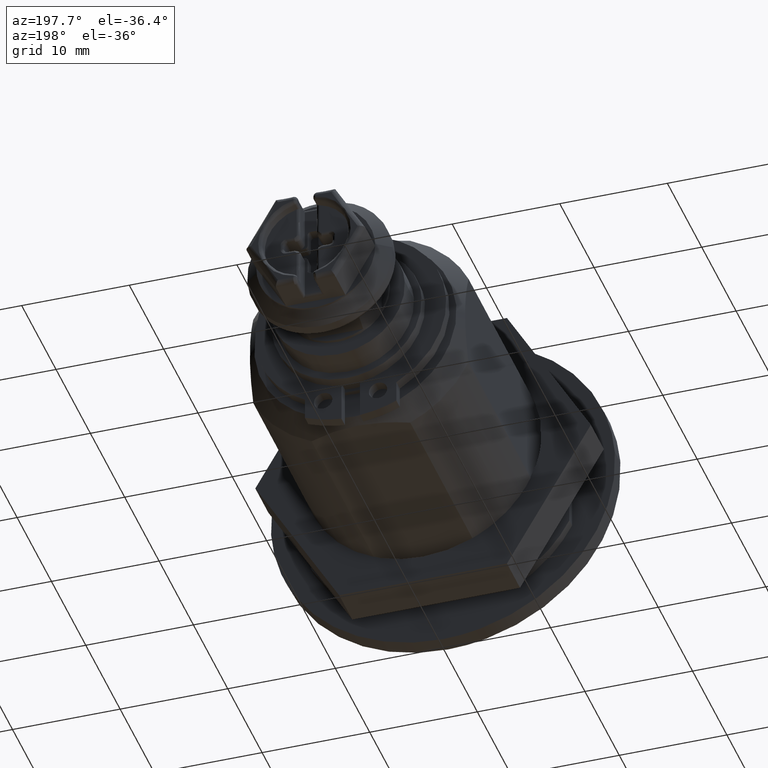
[diagram: clean part render]
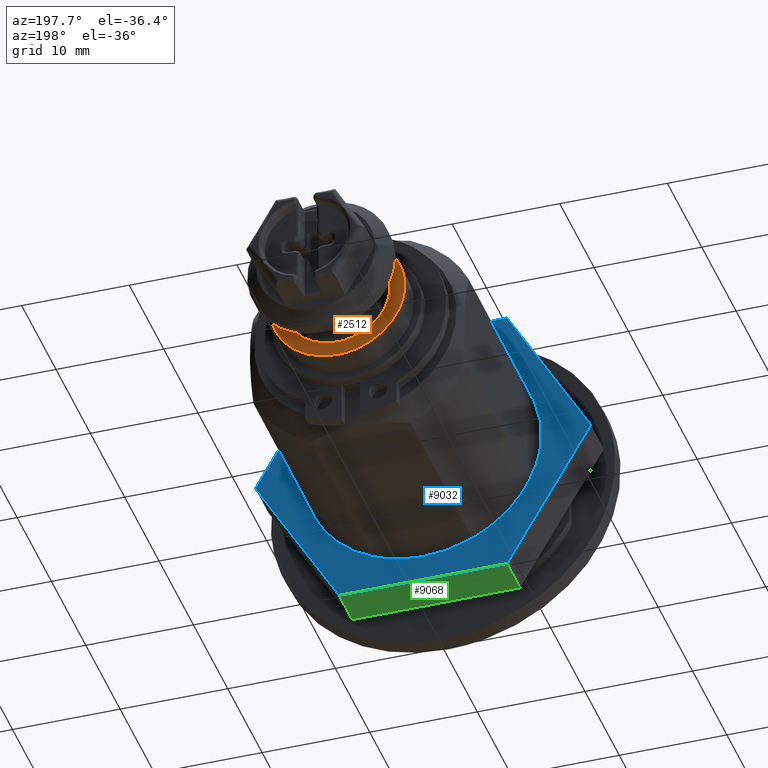
[diagram: same view with three faces highlighted in distinct colors, each labeled with its STEP entity id]
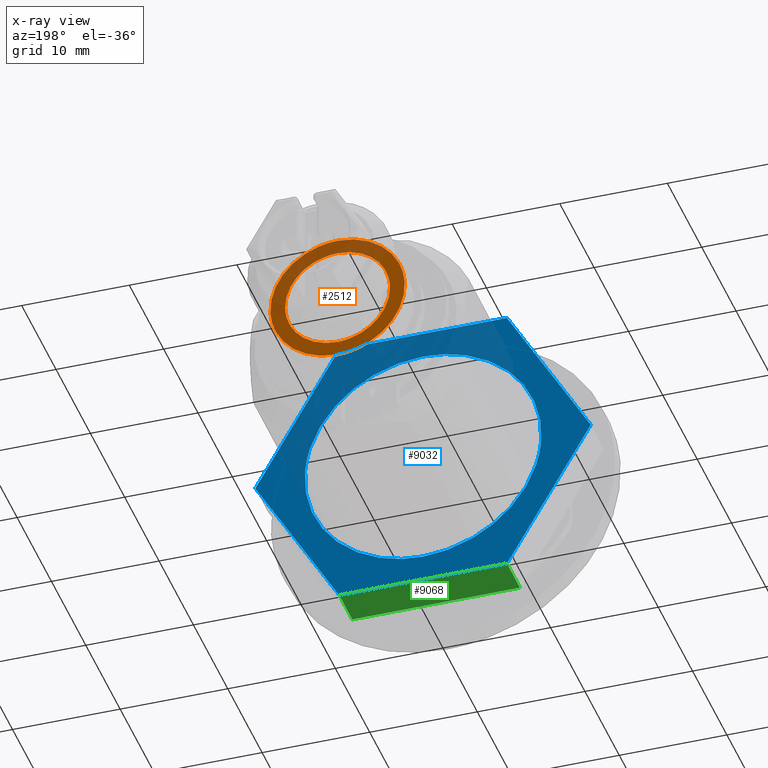
[diagram: x-ray of the same camera — body ghosted, the three highlighted faces saturated]
A machine part, auxiliary view with three faces highlighted in distinct colors.
The next image is the same camera in x-ray (body ghosted, the three faces saturated) — at least one of them is partly hidden behind the body in this view.
Their STEP definitions:

[orange] entity #2512 — the highlighted face is a freeform B-spline surface patch.
#2332=CARTESIAN_POINT('',(-6.238342513374422,30.699999999999999,0.381553373544685));
#2333=VERTEX_POINT('',#2332);
#2339=CARTESIAN_POINT('',(1.879771E-015,30.699999999999999,-6.250000000000000));
#2340=VERTEX_POINT('',#2339);
#2341=CARTESIAN_POINT('',(-6.238342513374422,30.699999999999999,0.381553373544685));
#2342=CARTESIAN_POINT('',(-6.250000022905648,30.700000000000003,0.190954772032410));
#2343=CARTESIAN_POINT('',(-6.250000022550630,30.699999999999999,1.379256E-009));
#2344=CARTESIAN_POINT('',(-6.250000010930822,30.700000000000003,-6.249999999331443));
#2345=CARTESIAN_POINT('',(1.879771E-015,30.699999999999999,-6.250000000000000));
#2353=(BOUNDED_CURVE()B_SPLINE_CURVE(2,(#2341,#2342,#2343,#2344,#2345),.UNSPECIFIED.,.F.,.U.)B_SPLINE_CURVE_WITH_KNOTS((3,2,3),(0.239332962241127,0.250000000000000,0.500000000000000),.UNSPECIFIED.)CURVE()GEOMETRIC_REPRESENTATION_ITEM()RATIONAL_B_SPLINE_CURVE((0.976072041671398,0.987502787902396,1.0,0.707106781186547,1.0))REPRESENTATION_ITEM(''));
#2354=EDGE_CURVE('',#2333,#2340,#2353,.T.);
#2356=CARTESIAN_POINT('',(6.238342513374425,30.699999999999999,-0.381553373544685));
#2357=VERTEX_POINT('',#2356);
#2358=CARTESIAN_POINT('',(1.879771E-015,30.699999999999999,-6.250000000000000));
#2359=CARTESIAN_POINT('',(5.879412929751665,30.699999999999999,-6.250000000710696));
#2360=CARTESIAN_POINT('',(6.238342513374425,30.699999999999999,-0.381553373544685));
#2368=(BOUNDED_CURVE()B_SPLINE_CURVE(2,(#2358,#2359,#2360),.UNSPECIFIED.,.F.,.U.)B_SPLINE_CURVE_WITH_KNOTS((3,3),(0.500000000000000,0.739332962241127),.UNSPECIFIED.)CURVE()GEOMETRIC_REPRESENTATION_ITEM()RATIONAL_B_SPLINE_CURVE((1.0,0.719603993284152,0.976072041671398))REPRESENTATION_ITEM(''));
#2369=EDGE_CURVE('',#2340,#2357,#2368,.T.);
#2401=CARTESIAN_POINT('',(1.879771E-015,30.699999999999999,6.250000000000000));
#2402=VERTEX_POINT('',#2401);
#2403=CARTESIAN_POINT('',(6.238342513374425,30.699999999999999,-0.381553373544685));
#2404=CARTESIAN_POINT('',(6.250000022905651,30.700000000000003,-0.190954772032410));
#2405=CARTESIAN_POINT('',(6.250000022550633,30.699999999999999,-1.379256E-009));
#2406=CARTESIAN_POINT('',(6.250000010930825,30.700000000000003,6.249999999331443));
#2407=CARTESIAN_POINT('',(1.879771E-015,30.699999999999999,6.250000000000000));
#2415=(BOUNDED_CURVE()B_SPLINE_CURVE(2,(#2403,#2404,#2405,#2406,#2407),.UNSPECIFIED.,.F.,.U.)B_SPLINE_CURVE_WITH_KNOTS((3,2,3),(0.739332962241127,0.750000000000000,1.0),.UNSPECIFIED.)CURVE()GEOMETRIC_REPRESENTATION_ITEM()RATIONAL_B_SPLINE_CURVE((0.976072041671398,0.987502787902396,1.0,0.707106781186547,1.0))REPRESENTATION_ITEM(''));
#2416=EDGE_CURVE('',#2357,#2402,#2415,.T.);
#2418=CARTESIAN_POINT('',(1.879771E-015,30.699999999999999,6.250000000000000));
#2419=CARTESIAN_POINT('',(-5.879412929751661,30.699999999999999,6.250000000710696));
#2420=CARTESIAN_POINT('',(-6.238342513374422,30.699999999999999,0.381553373544685));
#2428=(BOUNDED_CURVE()B_SPLINE_CURVE(2,(#2418,#2419,#2420),.UNSPECIFIED.,.F.,.U.)B_SPLINE_CURVE_WITH_KNOTS((3,3),(0.0,0.239332962241127),.UNSPECIFIED.)CURVE()GEOMETRIC_REPRESENTATION_ITEM()RATIONAL_B_SPLINE_CURVE((1.0,0.719603993284152,0.976072041671398))REPRESENTATION_ITEM(''));
#2429=EDGE_CURVE('',#2402,#2333,#2428,.T.);
#2435=CARTESIAN_POINT('',(6.874221170682428,30.699999999999999,-6.874374975772575));
#2436=CARTESIAN_POINT('',(6.874221170682428,30.699999999999999,6.874375311048702));
#2437=CARTESIAN_POINT('',(-6.874220947165007,30.699999999999999,-6.874374975772575));
#2438=CARTESIAN_POINT('',(-6.874220947165007,30.699999999999999,6.874375311048702));
#2439=B_SPLINE_SURFACE_WITH_KNOTS('',1,1,((#2435,#2437),(#2436,#2438)),.UNSPECIFIED.,.F.,.F.,.U.,(2,2),(2,2),(0.0,13.748750286821281),(0.0,13.748442117847439),.UNSPECIFIED.);
#2440=ORIENTED_EDGE('',*,*,#2416,.F.);
#2441=ORIENTED_EDGE('',*,*,#2369,.F.);
#2442=ORIENTED_EDGE('',*,*,#2354,.F.);
#2443=ORIENTED_EDGE('',*,*,#2429,.F.);
#2444=EDGE_LOOP('',(#2440,#2441,#2442,#2443));
#2445=FACE_OUTER_BOUND('',#2444,.T.);
#2446=CARTESIAN_POINT('',(1.879771E-015,30.699999999999999,-4.873461090027790));
#2447=VERTEX_POINT('',#2446);
#2448=CARTESIAN_POINT('',(4.873276285907901,30.699999999999999,-0.042519608505355));
#2449=VERTEX_POINT('',#2448);
#2450=CARTESIAN_POINT('',(1.879771E-015,30.699999999999999,-4.873461090027790));
#2451=CARTESIAN_POINT('',(4.831125708236149,30.699999999999999,-4.873461093017459));
#2452=CARTESIAN_POINT('',(4.873276285907901,30.700000000000003,-0.042519608505355));
#2460=(BOUNDED_CURVE()B_SPLINE_CURVE(2,(#2450,#2451,#2452),.UNSPECIFIED.,.F.,.U.)B_SPLINE_CURVE_WITH_KNOTS((3,3),(0.500000000000000,0.748460424774428),.UNSPECIFIED.)CURVE()GEOMETRIC_REPRESENTATION_ITEM()RATIONAL_B_SPLINE_CURVE((1.0,0.708910505760241,0.996414766609952))REPRESENTATION_ITEM(''));
#2461=EDGE_CURVE('',#2447,#2449,#2460,.T.);
#2462=ORIENTED_EDGE('',*,*,#2461,.T.);
#2463=CARTESIAN_POINT('',(1.879771E-015,30.699999999999999,4.873461090027790));
#2464=VERTEX_POINT('',#2463);
#2465=CARTESIAN_POINT('',(4.873276285907901,30.700000000000003,-0.042519608505355));
#2466=CARTESIAN_POINT('',(4.873461773852578,30.699999999999999,-0.021260211823126));
#2467=CARTESIAN_POINT('',(4.873461772357771,30.699999999999999,-5.953368E-009));
#2468=CARTESIAN_POINT('',(4.873461429704467,30.699999999999999,4.873461087064090));
#2469=CARTESIAN_POINT('',(1.879771E-015,30.699999999999999,4.873461090027790));
#2477=(BOUNDED_CURVE()B_SPLINE_CURVE(2,(#2465,#2466,#2467,#2468,#2469),.UNSPECIFIED.,.F.,.U.)B_SPLINE_CURVE_WITH_KNOTS((3,2,3),(0.748460424774428,0.750000000000000,1.0),.UNSPECIFIED.)CURVE()GEOMETRIC_REPRESENTATION_ITEM()RATIONAL_B_SPLINE_CURVE((0.996414766609952,0.998196275426307,1.0,0.707106781186548,1.0))REPRESENTATION_ITEM(''));
#2478=EDGE_CURVE('',#2449,#2464,#2477,.T.);
#2479=ORIENTED_EDGE('',*,*,#2478,.T.);
#2480=CARTESIAN_POINT('',(-4.873276285907897,30.699999999999999,0.042519608505356));
#2481=VERTEX_POINT('',#2480);
#2482=CARTESIAN_POINT('',(1.879771E-015,30.699999999999999,4.873461090027790));
#2483=CARTESIAN_POINT('',(-4.831125708236142,30.700000000000006,4.873461093017458));
#2484=CARTESIAN_POINT('',(-4.873276285907897,30.699999999999999,0.042519608505356));
#2492=(BOUNDED_CURVE()B_SPLINE_CURVE(2,(#2482,#2483,#2484),.UNSPECIFIED.,.F.,.U.)B_SPLINE_CURVE_WITH_KNOTS((3,3),(0.0,0.248460424774428),.UNSPECIFIED.)CURVE()GEOMETRIC_REPRESENTATION_ITEM()RATIONAL_B_SPLINE_CURVE((1.0,0.708910505760241,0.996414766609952))REPRESENTATION_ITEM(''));
#2493=EDGE_CURVE('',#2464,#2481,#2492,.T.);
#2494=ORIENTED_EDGE('',*,*,#2493,.T.);
#2495=CARTESIAN_POINT('',(-4.873276285907897,30.699999999999999,0.042519608505356));
#2496=CARTESIAN_POINT('',(-4.873461773852575,30.700000000000003,0.021260211823127));
#2497=CARTESIAN_POINT('',(-4.873461772357769,30.699999999999999,5.953368E-009));
#2498=CARTESIAN_POINT('',(-4.873461429704465,30.699999999999999,-4.873461087064090));
#2499=CARTESIAN_POINT('',(1.879771E-015,30.699999999999999,-4.873461090027790));
#2507=(BOUNDED_CURVE()B_SPLINE_CURVE(2,(#2495,#2496,#2497,#2498,#2499),.UNSPECIFIED.,.F.,.U.)B_SPLINE_CURVE_WITH_KNOTS((3,2,3),(0.248460424774428,0.250000000000000,0.500000000000000),.UNSPECIFIED.)CURVE()GEOMETRIC_REPRESENTATION_ITEM()RATIONAL_B_SPLINE_CURVE((0.996414766609952,0.998196275426306,1.0,0.707106781186548,1.0))REPRESENTATION_ITEM(''));
#2508=EDGE_CURVE('',#2481,#2447,#2507,.T.);
#2509=ORIENTED_EDGE('',*,*,#2508,.T.);
#2510=EDGE_LOOP('',(#2462,#2479,#2494,#2509));
#2511=FACE_BOUND('',#2510,.T.);
#2512=ADVANCED_FACE('',(#2445,#2511),#2439,.F.);

[blue] entity #9032 — the highlighted face is a freeform B-spline surface patch.
#8791=CARTESIAN_POINT('',(-10.966091461285419,5.800000000000001,-0.863040012178766));
#8792=VERTEX_POINT('',#8791);
#8798=CARTESIAN_POINT('',(3.551358E-016,5.800000000000000,10.999999999999970));
#8799=VERTEX_POINT('',#8798);
#8800=CARTESIAN_POINT('',(-10.966091461285428,5.800000000000003,-0.863040012178766));
#8801=CARTESIAN_POINT('',(-10.999999999995486,5.800000000000001,-0.432186133372559));
#8802=CARTESIAN_POINT('',(-10.999999999995580,5.800000000000001,3.191874E-013));
#8803=CARTESIAN_POINT('',(-10.999999999997875,5.800000000000002,11.000000000000139));
#8804=CARTESIAN_POINT('',(3.551358E-016,5.800000000000000,10.999999999999970));
#8812=(BOUNDED_CURVE()B_SPLINE_CURVE(2,(#8800,#8801,#8802,#8803,#8804),.UNSPECIFIED.,.F.,.U.)B_SPLINE_CURVE_WITH_KNOTS((3,2,3),(0.736331457593343,0.750000000000000,1.0),.UNSPECIFIED.)CURVE()GEOMETRIC_REPRESENTATION_ITEM()RATIONAL_B_SPLINE_CURVE((0.969723683736795,0.983986306472105,1.0,0.707106781186548,1.0))REPRESENTATION_ITEM(''));
#8813=EDGE_CURVE('',#8792,#8799,#8812,.T.);
#8815=CARTESIAN_POINT('',(10.966091461285419,5.799999999999999,0.863040012178706));
#8816=VERTEX_POINT('',#8815);
#8817=CARTESIAN_POINT('',(3.551358E-016,5.800000000000000,10.999999999999970));
#8818=CARTESIAN_POINT('',(10.168304747376913,5.800000000000000,10.999999999999790));
#8819=CARTESIAN_POINT('',(10.966091461285428,5.799999999999999,0.863040012178706));
#8827=(BOUNDED_CURVE()B_SPLINE_CURVE(2,(#8817,#8818,#8819),.UNSPECIFIED.,.F.,.U.)B_SPLINE_CURVE_WITH_KNOTS((3,3),(0.0,0.236331457593343),.UNSPECIFIED.)CURVE()GEOMETRIC_REPRESENTATION_ITEM()RATIONAL_B_SPLINE_CURVE((1.0,0.723120474714443,0.969723683736795))REPRESENTATION_ITEM(''));
#8828=EDGE_CURVE('',#8799,#8816,#8827,.T.);
#8874=CARTESIAN_POINT('',(3.551358E-016,5.800000000000000,-11.000000000000030));
#8875=VERTEX_POINT('',#8874);
#8876=CARTESIAN_POINT('',(10.966091461285428,5.799999999999999,0.863040012178706));
#8877=CARTESIAN_POINT('',(10.999999999995486,5.800000000000000,0.432186133372501));
#8878=CARTESIAN_POINT('',(10.999999999995580,5.800000000000000,-3.766718E-013));
#8879=CARTESIAN_POINT('',(10.999999999997875,5.800000000000001,-11.000000000000194));
#8880=CARTESIAN_POINT('',(3.551358E-016,5.800000000000000,-11.000000000000030));
#8888=(BOUNDED_CURVE()B_SPLINE_CURVE(2,(#8876,#8877,#8878,#8879,#8880),.UNSPECIFIED.,.F.,.U.)B_SPLINE_CURVE_WITH_KNOTS((3,2,3),(0.236331457593343,0.250000000000000,0.500000000000000),.UNSPECIFIED.)CURVE()GEOMETRIC_REPRESENTATION_ITEM()RATIONAL_B_SPLINE_CURVE((0.969723683736795,0.983986306472105,1.0,0.707106781186548,1.0))REPRESENTATION_ITEM(''));
#8889=EDGE_CURVE('',#8816,#8875,#8888,.T.);
#8891=CARTESIAN_POINT('',(3.551358E-016,5.800000000000000,-11.000000000000030));
#8892=CARTESIAN_POINT('',(-10.168304747376910,5.800000000000001,-10.999999999999847));
#8893=CARTESIAN_POINT('',(-10.966091461285428,5.800000000000003,-0.863040012178766));
#8901=(BOUNDED_CURVE()B_SPLINE_CURVE(2,(#8891,#8892,#8893),.UNSPECIFIED.,.F.,.U.)B_SPLINE_CURVE_WITH_KNOTS((3,3),(0.500000000000000,0.736331457593343),.UNSPECIFIED.)CURVE()GEOMETRIC_REPRESENTATION_ITEM()RATIONAL_B_SPLINE_CURVE((1.0,0.723120474714443,0.969723683736795))REPRESENTATION_ITEM(''));
#8902=EDGE_CURVE('',#8875,#8792,#8901,.T.);
#8977=CARTESIAN_POINT('',(17.145744088778539,5.800000000000069,14.848649947668759));
#8978=CARTESIAN_POINT('',(-17.145744925008309,5.800000000000071,14.848649947668759));
#8979=CARTESIAN_POINT('',(17.145744088778539,5.800000000000069,-14.848650671865190));
#8980=CARTESIAN_POINT('',(-17.145744925008309,5.800000000000071,-14.848650671865190));
#8981=B_SPLINE_SURFACE_WITH_KNOTS('',1,1,((#8977,#8979),(#8978,#8980)),.UNSPECIFIED.,.F.,.F.,.U.,(2,2),(2,2),(0.0,34.291489013786837),(0.0,29.697300619533959),.UNSPECIFIED.);
#8982=CARTESIAN_POINT('',(15.588457268120250,5.799999999999999,0.0));
#8983=VERTEX_POINT('',#8982);
#8984=CARTESIAN_POINT('',(7.794228634060120,5.799999999999999,13.500000000000000));
#8985=VERTEX_POINT('',#8984);
#8986=CARTESIAN_POINT('',(15.588457268120250,5.799999999999999,0.0));
#8987=CARTESIAN_POINT('',(7.794228634060120,5.799999999999999,13.500000000000000));
#8988=QUASI_UNIFORM_CURVE('',1,(#8986,#8987),.UNSPECIFIED.,.F.,.U.);
#8989=EDGE_CURVE('',#8983,#8985,#8988,.T.);
#8990=ORIENTED_EDGE('',*,*,#8989,.F.);
#8991=CARTESIAN_POINT('',(7.794228634060010,5.799999999999999,-13.500000000000000));
#8992=VERTEX_POINT('',#8991);
#8993=CARTESIAN_POINT('',(7.794228634060010,5.799999999999999,-13.500000000000000));
#8994=CARTESIAN_POINT('',(15.588457268120250,5.799999999999999,0.0));
#8995=QUASI_UNIFORM_CURVE('',1,(#8993,#8994),.UNSPECIFIED.,.F.,.U.);
#8996=EDGE_CURVE('',#8992,#8983,#8995,.T.);
#8997=ORIENTED_EDGE('',*,*,#8996,.F.);
#8998=CARTESIAN_POINT('',(-7.794228634059890,5.800000000000001,-13.500000000000000));
#8999=VERTEX_POINT('',#8998);
#9000=CARTESIAN_POINT('',(-7.794228634059890,5.800000000000001,-13.500000000000000));
#9001=CARTESIAN_POINT('',(7.794228634060010,5.799999999999999,-13.500000000000000));
#9002=QUASI_UNIFORM_CURVE('',1,(#9000,#9001),.UNSPECIFIED.,.F.,.U.);
#9003=EDGE_CURVE('',#8999,#8992,#9002,.T.);
#9004=ORIENTED_EDGE('',*,*,#9003,.F.);
#9005=CARTESIAN_POINT('',(-15.588457268120001,5.800000000000001,-5.684342E-014));
#9006=VERTEX_POINT('',#9005);
#9007=CARTESIAN_POINT('',(-15.588457268120001,5.800000000000001,-5.684342E-014));
#9008=CARTESIAN_POINT('',(-7.794228634059890,5.800000000000001,-13.500000000000000));
#9009=QUASI_UNIFORM_CURVE('',1,(#9007,#9008),.UNSPECIFIED.,.F.,.U.);
#9010=EDGE_CURVE('',#9006,#8999,#9009,.T.);
#9011=ORIENTED_EDGE('',*,*,#9010,.F.);
#9012=CARTESIAN_POINT('',(-7.794228634059890,5.800000000000001,13.500000000000000));
#9013=VERTEX_POINT('',#9012);
#9014=CARTESIAN_POINT('',(-7.794228634059890,5.800000000000001,13.500000000000000));
#9015=CARTESIAN_POINT('',(-15.588457268120001,5.800000000000001,-5.684342E-014));
#9016=QUASI_UNIFORM_CURVE('',1,(#9014,#9015),.UNSPECIFIED.,.F.,.U.);
#9017=EDGE_CURVE('',#9013,#9006,#9016,.T.);
#9018=ORIENTED_EDGE('',*,*,#9017,.F.);
#9019=CARTESIAN_POINT('',(7.794228634060120,5.799999999999999,13.500000000000000));
#9020=CARTESIAN_POINT('',(-7.794228634059890,5.800000000000001,13.500000000000000));
#9021=QUASI_UNIFORM_CURVE('',1,(#9019,#9020),.UNSPECIFIED.,.F.,.U.);
#9022=EDGE_CURVE('',#8985,#9013,#9021,.T.);
#9023=ORIENTED_EDGE('',*,*,#9022,.F.);
#9024=EDGE_LOOP('',(#8990,#8997,#9004,#9011,#9018,#9023));
#9025=FACE_OUTER_BOUND('',#9024,.T.);
#9026=ORIENTED_EDGE('',*,*,#8902,.F.);
#9027=ORIENTED_EDGE('',*,*,#8889,.F.);
#9028=ORIENTED_EDGE('',*,*,#8828,.F.);
#9029=ORIENTED_EDGE('',*,*,#8813,.F.);
#9030=EDGE_LOOP('',(#9026,#9027,#9028,#9029));
#9031=FACE_BOUND('',#9030,.T.);
#9032=ADVANCED_FACE('',(#9025,#9031),#8981,.F.);

[green] entity #9068 — the highlighted face is a freeform B-spline surface patch.
#8949=CARTESIAN_POINT('',(-7.794228634059890,2.0,-13.500000000000000));
#8950=VERTEX_POINT('',#8949);
#8956=CARTESIAN_POINT('',(7.794228634060010,2.0,-13.500000000000000));
#8957=VERTEX_POINT('',#8956);
#8958=CARTESIAN_POINT('',(-7.794228634059890,2.0,-13.500000000000000));
#8959=CARTESIAN_POINT('',(7.794228634060010,2.0,-13.500000000000000));
#8960=QUASI_UNIFORM_CURVE('',1,(#8958,#8959),.UNSPECIFIED.,.F.,.U.);
#8961=EDGE_CURVE('',#8950,#8957,#8960,.T.);
#8991=CARTESIAN_POINT('',(7.794228634060010,5.799999999999999,-13.500000000000000));
#8992=VERTEX_POINT('',#8991);
#8998=CARTESIAN_POINT('',(-7.794228634059890,5.800000000000001,-13.500000000000000));
#8999=VERTEX_POINT('',#8998);
#9000=CARTESIAN_POINT('',(-7.794228634059890,5.800000000000001,-13.500000000000000));
#9001=CARTESIAN_POINT('',(7.794228634060010,5.799999999999999,-13.500000000000000));
#9002=QUASI_UNIFORM_CURVE('',1,(#9000,#9001),.UNSPECIFIED.,.F.,.U.);
#9003=EDGE_CURVE('',#8999,#8992,#9002,.T.);
#9039=CARTESIAN_POINT('',(7.794228634060010,5.799999999999999,-13.500000000000000));
#9040=CARTESIAN_POINT('',(7.794228634060010,2.0,-13.500000000000000));
#9041=QUASI_UNIFORM_CURVE('',1,(#9039,#9040),.UNSPECIFIED.,.F.,.U.);
#9042=EDGE_CURVE('',#8992,#8957,#9041,.T.);
#9053=CARTESIAN_POINT('',(8.572872044389145,1.810190007365137,-13.500000000000000));
#9054=CARTESIAN_POINT('',(-8.572872462504032,1.810190007365138,-13.500000000000000));
#9055=CARTESIAN_POINT('',(8.572872044389145,5.989810094558805,-13.500000000000000));
#9056=CARTESIAN_POINT('',(-8.572872462504032,5.989810094558806,-13.500000000000000));
#9057=B_SPLINE_SURFACE_WITH_KNOTS('',1,1,((#9053,#9055),(#9054,#9056)),.UNSPECIFIED.,.F.,.F.,.U.,(2,2),(2,2),(0.0,17.145744506893180),(0.0,4.179620087193668),.UNSPECIFIED.);
#9058=ORIENTED_EDGE('',*,*,#8961,.F.);
#9059=CARTESIAN_POINT('',(-7.794228634059890,5.800000000000001,-13.500000000000000));
#9060=CARTESIAN_POINT('',(-7.794228634059890,2.0,-13.500000000000000));
#9061=QUASI_UNIFORM_CURVE('',1,(#9059,#9060),.UNSPECIFIED.,.F.,.U.);
#9062=EDGE_CURVE('',#8999,#8950,#9061,.T.);
#9063=ORIENTED_EDGE('',*,*,#9062,.F.);
#9064=ORIENTED_EDGE('',*,*,#9003,.T.);
#9065=ORIENTED_EDGE('',*,*,#9042,.T.);
#9066=EDGE_LOOP('',(#9058,#9063,#9064,#9065));
#9067=FACE_OUTER_BOUND('',#9066,.T.);
#9068=ADVANCED_FACE('',(#9067),#9057,.T.);